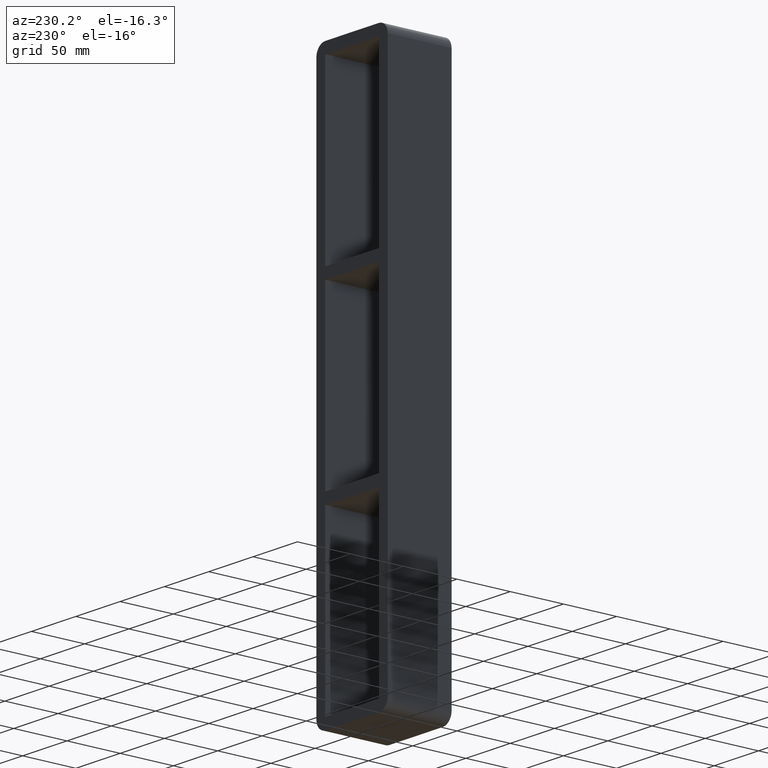
[diagram: clean part render]
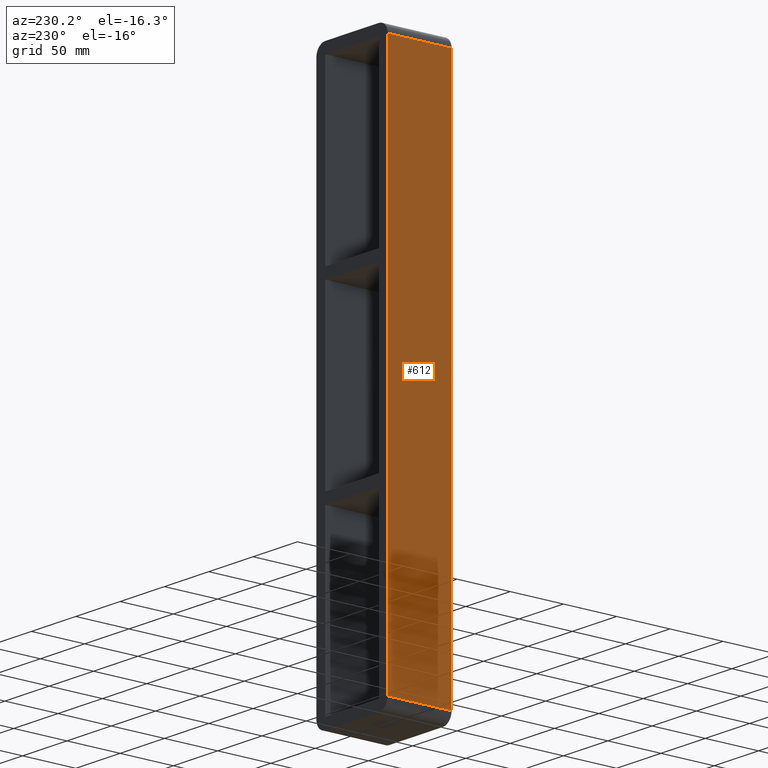
[diagram: same view with one face highlighted and labeled with its STEP entity id]
A machine part, auxiliary view. The second image highlights one B-rep face of the part: STEP entity #612.
In plain terms, the highlighted planar face has unit normal (-1, 0, 0).
Its self-contained STEP definition (entity closure, byte-faithful):
#438=CARTESIAN_POINT('',(-40.25,-3.0,249.25));
#439=VERTEX_POINT('',#438);
#447=CARTESIAN_POINT('',(-40.25,-3.0,-249.25));
#448=VERTEX_POINT('',#447);
#449=CARTESIAN_POINT('',(-40.25,-3.0,249.25));
#450=DIRECTION('',(0.0,0.0,-1.0));
#451=VECTOR('',#450,498.5);
#452=LINE('',#449,#451);
#453=EDGE_CURVE('',#439,#448,#452,.T.);
#562=CARTESIAN_POINT('',(-40.25,57.0,-249.25));
#563=VERTEX_POINT('',#562);
#580=CARTESIAN_POINT('',(-40.25,-3.0,-249.25));
#581=DIRECTION('',(0.0,1.0,0.0));
#582=VECTOR('',#581,60.0);
#583=LINE('',#580,#582);
#584=EDGE_CURVE('',#448,#563,#583,.T.);
#589=CARTESIAN_POINT('',(-40.25,0.0,-259.25));
#590=DIRECTION('',(-1.0,0.0,0.0));
#591=DIRECTION('',(0.0,0.0,1.0));
#592=AXIS2_PLACEMENT_3D('',#589,#590,#591);
#593=PLANE('',#592);
#594=ORIENTED_EDGE('',*,*,#584,.F.);
#595=ORIENTED_EDGE('',*,*,#453,.F.);
#596=CARTESIAN_POINT('',(-40.25,57.0,249.25));
#597=VERTEX_POINT('',#596);
#598=CARTESIAN_POINT('',(-40.25,57.0,249.25));
#599=DIRECTION('',(0.0,-1.0,0.0));
#600=VECTOR('',#599,60.0);
#601=LINE('',#598,#600);
#602=EDGE_CURVE('',#597,#439,#601,.T.);
#603=ORIENTED_EDGE('',*,*,#602,.F.);
#604=CARTESIAN_POINT('',(-40.25,57.0,-249.25));
#605=DIRECTION('',(0.0,0.0,1.0));
#606=VECTOR('',#605,498.5);
#607=LINE('',#604,#606);
#608=EDGE_CURVE('',#563,#597,#607,.T.);
#609=ORIENTED_EDGE('',*,*,#608,.F.);
#610=EDGE_LOOP('',(#594,#595,#603,#609));
#611=FACE_OUTER_BOUND('',#610,.T.);
#612=ADVANCED_FACE('',(#611),#593,.T.);